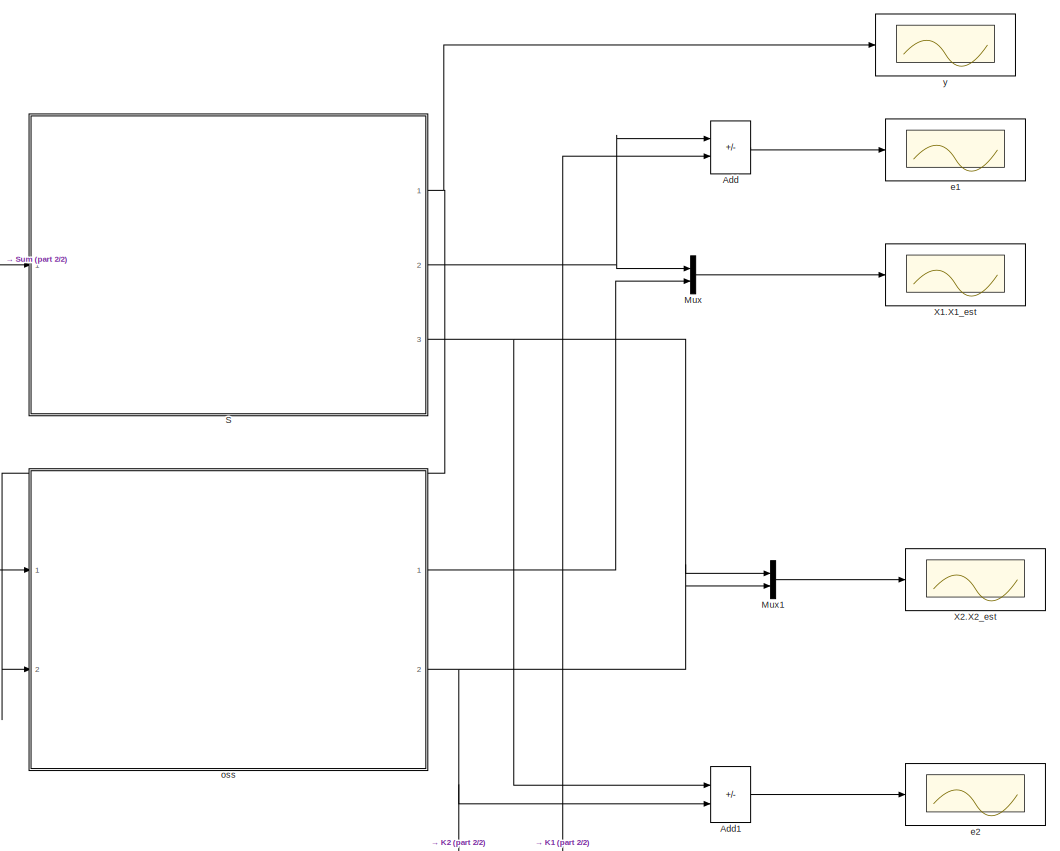
[diagram: root canvas - part 1/2, right side, full height]
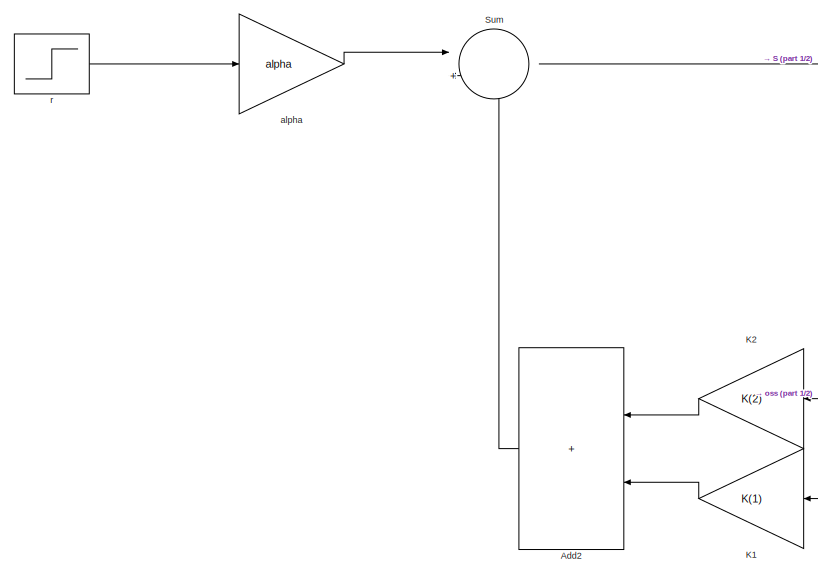
[diagram: root canvas - part 2/2, middle left region]
MODEL slx_1dbb4ca42a99
KIND model
CONFIG AbsTol = auto
CONFIG EnableMultiTasking = off
CONFIG FixedStep = auto
CONFIG MaxStep = 1e-3
CONFIG MinStep = auto
CONFIG RelTol = 1e-3
CONFIG SampleTimeConstraint = Unconstrained
CONFIG SolverName = VariableStepAuto
CONFIG StartTime = 0.0
CONFIG StopTime = 5
BLOCK [Sum] Add
  IconShape = rectangular
  Inputs = +-
  Ports = [2, 1]
BLOCK [Sum] Add1
  IconShape = rectangular
  Inputs = +-
  Ports = [2, 1]
BLOCK [Sum] Add2
  IconShape = rectangular
  NameLocation = top
  Ports = [2, 1]
BLOCK [Gain] K1
  Gain = K(1)
  NameLocation = top
BLOCK [Gain] K2
  Gain = K(2)
  NameLocation = top
BLOCK [Mux] Mux
  DisplayOption = bar
  Inputs = 2
  Ports = [2, 1]
BLOCK [Mux] Mux1
  DisplayOption = bar
  Inputs = 2
  Ports = [2, 1]
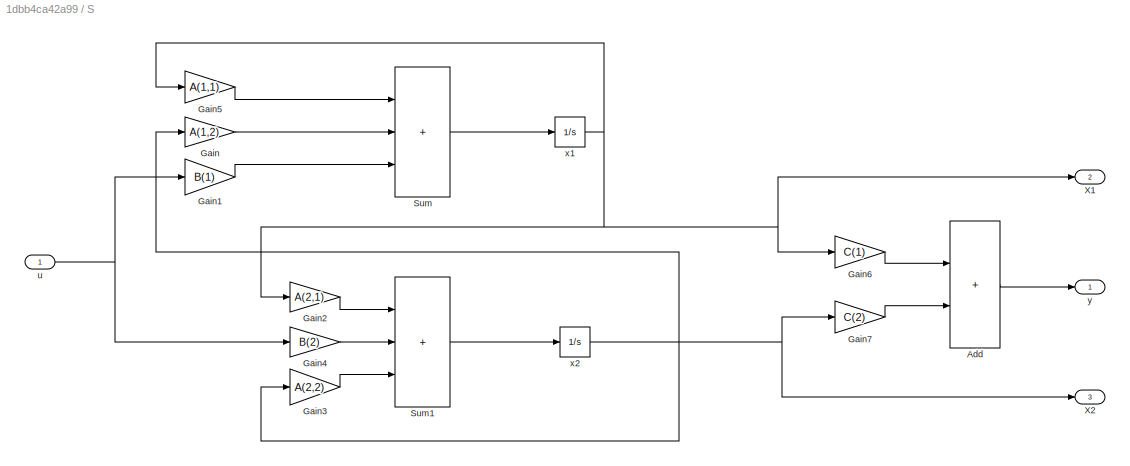
BLOCK [SubSystem] S
  Ports = [1, 3]
  RequestExecContextInheritance = off
BLOCK [Sum] S/Add
  IconShape = rectangular
  Ports = [2, 1]
BLOCK [Gain] S/Gain
  Gain = A(1,2)
BLOCK [Gain] S/Gain1
  Gain = B(1)
BLOCK [Gain] S/Gain2
  Gain = A(2,1)
BLOCK [Gain] S/Gain3
  Gain = A(2,2)
BLOCK [Gain] S/Gain4
  Gain = B(2)
BLOCK [Gain] S/Gain5
  Gain = A(1,1)
BLOCK [Gain] S/Gain6
  Gain = C(1)
BLOCK [Gain] S/Gain7
  Gain = C(2)
BLOCK [Sum] S/Sum
  IconShape = rectangular
  Inputs = +++
  Ports = [3, 1]
BLOCK [Sum] S/Sum1
  IconShape = rectangular
  Inputs = +++
  Ports = [3, 1]
BLOCK [Outport] S/X1
  Port = 2
BLOCK [Outport] S/X2
  Port = 3
BLOCK [Inport] S/u
BLOCK [Integrator] S/x1
  InitialCondition = -5
  Ports = [1, 1]
BLOCK [Integrator] S/x2
  InitialCondition = 1
  Ports = [1, 1]
BLOCK [Outport] S/y
BLOCK [Sum] Sum
  Inputs = |+-
  Ports = [2, 1]
BLOCK [Scope] X1.X1_est
  Floating = off
  NumInputPorts = 1
  Ports = [1]
  ScopeSpecificationString = Simulink.scopes.TimeScopeBlockCfg('CurrentConfiguration', extmgr.ConfigurationSet(extmgr.Configuration('Core','General UI',true),extmgr.Configuration('Core','Source UI',true),extmgr.Configuration('Sources','WiredSimulink',true,'DataLoggingVariableName','ScopeData1'),extmgr.Configuration('Visuals','Time Domain',true,'SerializedDisplays',{struct('MinYLimReal','-176235.81282','MaxYLimReal','1586057.9...<+1467ch>
BLOCK [Scope] X2.X2_est
  Floating = off
  NumInputPorts = 1
  Ports = [1]
  ScopeSpecificationString = Simulink.scopes.TimeScopeBlockCfg('CurrentConfiguration', extmgr.ConfigurationSet(extmgr.Configuration('Core','General UI',true),extmgr.Configuration('Core','Source UI',true),extmgr.Configuration('Sources','WiredSimulink',true,'DataLoggingVariableName','ScopeData2'),extmgr.Configuration('Visuals','Time Domain',true,'SerializedDisplays',{struct('MinYLimReal','-195484.99178','MaxYLimReal','1759364.9...<+1466ch>
BLOCK [Gain] alpha
  Gain = alpha
BLOCK [Scope] e1
  Floating = off
  NumInputPorts = 1
  Ports = [1]
  ScopeSpecificationString = Simulink.scopes.TimeScopeBlockCfg('CurrentConfiguration', extmgr.ConfigurationSet(extmgr.Configuration('Core','General UI',true),extmgr.Configuration('Core','Source UI',true),extmgr.Configuration('Sources','WiredSimulink',true,'DataLoggingVariableName','ScopeData3'),extmgr.Configuration('Visuals','Time Domain',true,'SerializedDisplays',{struct('MinYLimReal','-20839967343101501098579060224614275464...<+2347ch>
BLOCK [Scope] e2
  Floating = off
  NumInputPorts = 1
  Ports = [1]
  ScopeSpecificationString = Simulink.scopes.TimeScopeBlockCfg('CurrentConfiguration', extmgr.ConfigurationSet(extmgr.Configuration('Core','General UI',true),extmgr.Configuration('Core','Source UI',true),extmgr.Configuration('Sources','WiredSimulink',true),extmgr.Configuration('Visuals','Time Domain',true,'SerializedDisplays',{struct('MinYLimReal','-22.97563','MaxYLimReal','206.70252','YLabelReal','','MinYLimMag','0.00000','M...<+1389ch>
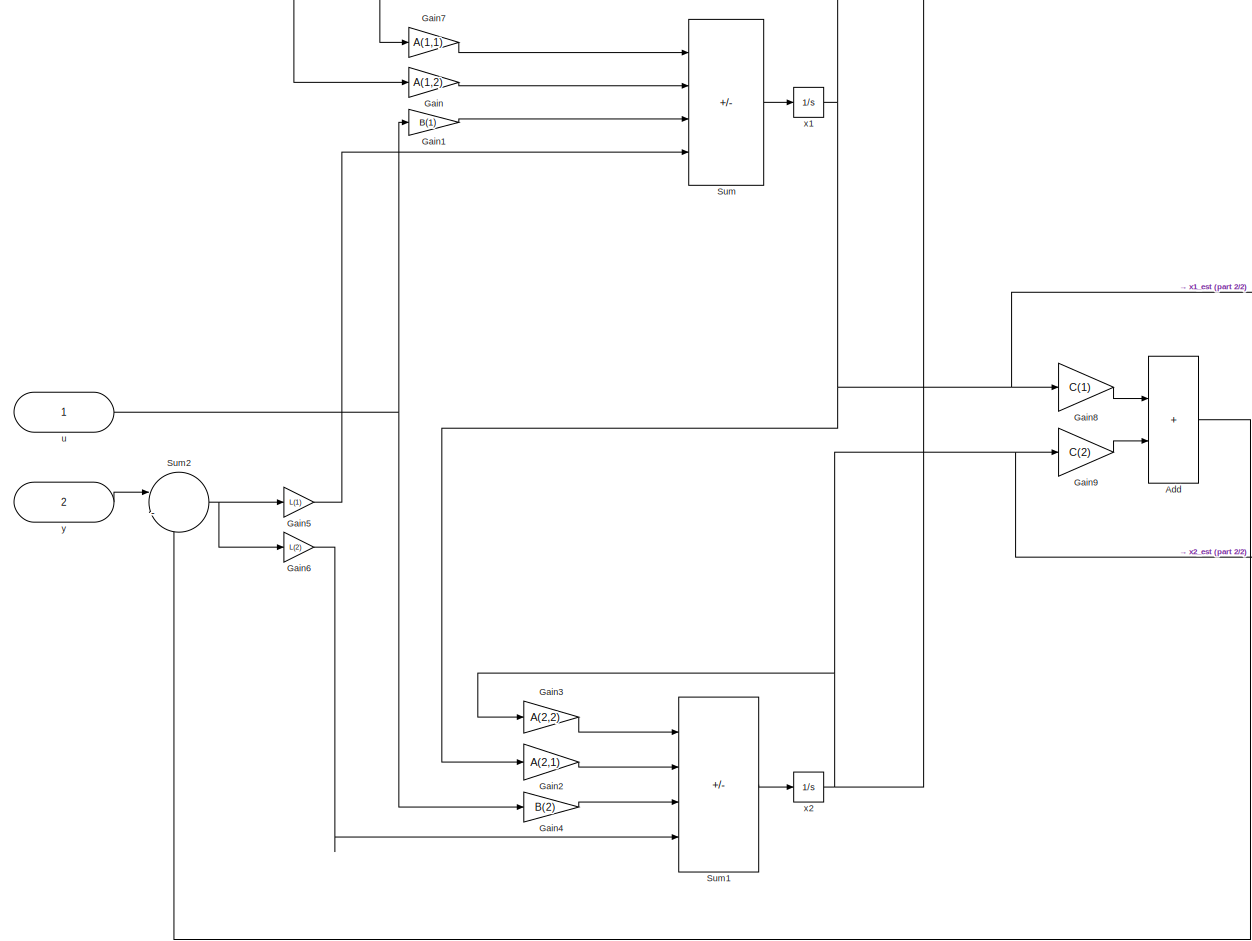
[diagram: oss - part 1/2, most of the canvas]
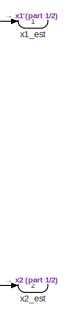
[diagram: oss - part 2/2, middle right region]
BLOCK [SubSystem] oss
  Ports = [2, 2]
  RequestExecContextInheritance = off
BLOCK [Sum] oss/Add
  IconShape = rectangular
  Ports = [2, 1]
BLOCK [Gain] oss/Gain
  Gain = A(1,2)
BLOCK [Gain] oss/Gain1
  Gain = B(1)
BLOCK [Gain] oss/Gain2
  Gain = A(2,1)
BLOCK [Gain] oss/Gain3
  Gain = A(2,2)
BLOCK [Gain] oss/Gain4
  Gain = B(2)
BLOCK [Gain] oss/Gain5
  Gain = L(1)
BLOCK [Gain] oss/Gain6
  Gain = L(2)
BLOCK [Gain] oss/Gain7
  Gain = A(1,1)
BLOCK [Gain] oss/Gain8
  Gain = C(1)
BLOCK [Gain] oss/Gain9
  Gain = C(2)
BLOCK [Sum] oss/Sum
  IconShape = rectangular
  Inputs = +++-
  Ports = [4, 1]
BLOCK [Sum] oss/Sum1
  IconShape = rectangular
  Inputs = +++-
  Ports = [4, 1]
BLOCK [Sum] oss/Sum2
  Inputs = |-+
  Ports = [2, 1]
BLOCK [Inport] oss/u
BLOCK [Integrator] oss/x1
  Ports = [1, 1]
BLOCK [Outport] oss/x1_est
BLOCK [Integrator] oss/x2
  Ports = [1, 1]
BLOCK [Outport] oss/x2_est
  Port = 2
BLOCK [Inport] oss/y
  Port = 2
BLOCK [Step] r
  SampleTime = 0
  Time = 0
BLOCK [Scope] y
  Floating = off
  NumInputPorts = 1
  Ports = [1]
  ScopeSpecificationString = Simulink.scopes.TimeScopeBlockCfg('CurrentConfiguration', extmgr.ConfigurationSet(extmgr.Configuration('Core','General UI',true),extmgr.Configuration('Core','Source UI',true),extmgr.Configuration('Sources','WiredSimulink',true,'DataLoggingVariableName','ScopeData4'),extmgr.Configuration('Visuals','Time Domain',true,'SerializedDisplays',{struct('MinYLimReal','-3683.37856','MaxYLimReal','3135.61732'...<+1439ch>
LINE Add1:1 -> e2:1
LINE Add2:1 -> Sum:2
LINE Add:1 -> e1:1
LINE K1:1 -> Add2:2
LINE K2:1 -> Add2:1
LINE Mux1:1 -> X2.X2_est:1
LINE Mux:1 -> X1.X1_est:1
LINE S/Add:1 -> S/y:1
LINE S/Gain1:1 -> S/Sum:3
LINE S/Gain2:1 -> S/Sum1:1
LINE S/Gain3:1 -> S/Sum1:3
LINE S/Gain4:1 -> S/Sum1:2
LINE S/Gain5:1 -> S/Sum:1
LINE S/Gain6:1 -> S/Add:1
LINE S/Gain7:1 -> S/Add:2
LINE S/Gain:1 -> S/Sum:2
LINE S/Sum1:1 -> S/x2:1
LINE S/Sum:1 -> S/x1:1
NET S/u:1 -> S/Gain1:1, S/Gain4:1
NET S/x1:1 -> S/Gain2:1, S/Gain5:1, S/Gain6:1, S/X1:1
NET S/x2:1 -> S/Gain3:1, S/Gain7:1, S/Gain:1, S/X2:1
NET S:1 -> oss:2, y:1
NET S:2 -> Add:1, Mux:1
NET S:3 -> Add1:1, Mux1:1
NET Sum:1 -> S:1, oss:1
LINE alpha:1 -> Sum:1
LINE oss/Add:1 -> oss/Sum2:2
LINE oss/Gain1:1 -> oss/Sum:3
LINE oss/Gain2:1 -> oss/Sum1:2
LINE oss/Gain3:1 -> oss/Sum1:1
LINE oss/Gain4:1 -> oss/Sum1:3
LINE oss/Gain5:1 -> oss/Sum:4
LINE oss/Gain6:1 -> oss/Sum1:4
LINE oss/Gain7:1 -> oss/Sum:1
LINE oss/Gain8:1 -> oss/Add:1
LINE oss/Gain9:1 -> oss/Add:2
LINE oss/Gain:1 -> oss/Sum:2
LINE oss/Sum1:1 -> oss/x2:1
NET oss/Sum2:1 -> oss/Gain5:1, oss/Gain6:1
LINE oss/Sum:1 -> oss/x1:1
NET oss/u:1 -> oss/Gain1:1, oss/Gain4:1
NET oss/x1:1 -> oss/Gain2:1, oss/Gain7:1, oss/Gain8:1, oss/x1_est:1
NET oss/x2:1 -> oss/Gain3:1, oss/Gain9:1, oss/Gain:1, oss/x2_est:1
LINE oss/y:1 -> oss/Sum2:1
NET oss:1 -> Add:2, K1:1, Mux:2
NET oss:2 -> Add1:2, K2:1, Mux1:2
LINE r:1 -> alpha:1
note: NET lines group one-source signal fan-out (src -> all destinations, sorted); 1:1 wires keep LINE
